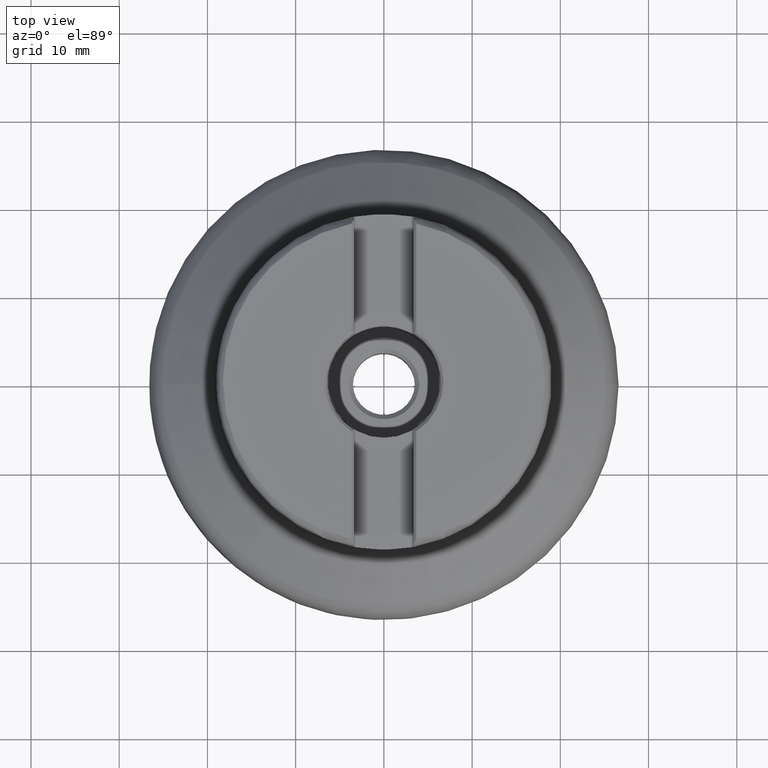
[diagram: clean part render]
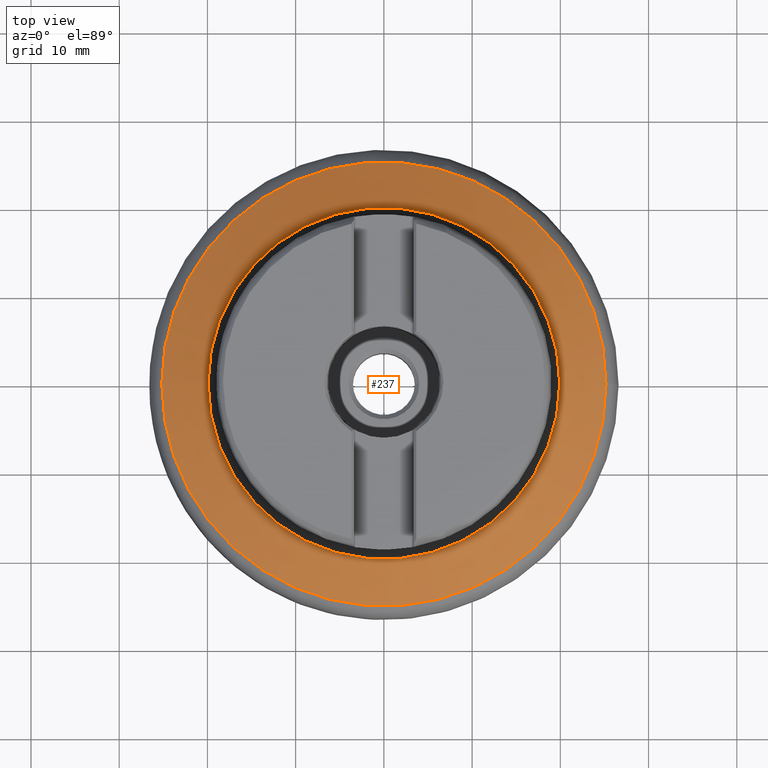
[diagram: same view with one face highlighted and labeled with its STEP entity id]
A machine part, top view. The second image highlights one B-rep face of the part: STEP entity #237.
In plain terms, the highlighted conical surface has half-angle 50 deg.
Its self-contained STEP definition (entity closure, byte-faithful):
#165=CONICAL_SURFACE('',#1207,18.5,50.);
#237=ADVANCED_FACE('',(#392,#393),#165,.T.);
#392=FACE_BOUND('',#500,.T.);
#393=FACE_BOUND('',#501,.T.);
#500=EDGE_LOOP('',(#653));
#501=EDGE_LOOP('',(#654));
#653=ORIENTED_EDGE('',*,*,#972,.T.);
#654=ORIENTED_EDGE('',*,*,#973,.T.);
#873=VERTEX_POINT('',#2014);
#874=VERTEX_POINT('',#2016);
#972=EDGE_CURVE('',#873,#873,#1069,.T.);
#973=EDGE_CURVE('',#874,#874,#1070,.T.);
#1069=CIRCLE('',#1205,19.9288495612538);
#1070=CIRCLE('',#1206,25.1711504387462);
#1205=AXIS2_PLACEMENT_3D('',#2013,#1369,#1370);
#1206=AXIS2_PLACEMENT_3D('',#2015,#1371,#1372);
#1207=AXIS2_PLACEMENT_3D('',#2017,#1373,#1374);
#1369=DIRECTION('',(-1.17145536458252E-15,0.,-1.));
#1370=DIRECTION('',(-1.,0.,1.21864177804287E-15));
#1371=DIRECTION('',(1.17145536458252E-15,0.,1.));
#1372=DIRECTION('',(1.,0.,-1.10267409839578E-15));
#1373=DIRECTION('',(-1.17145536458252E-15,0.,-1.));
#1374=DIRECTION('',(-1.,0.,1.21548534673226E-15));
#2013=CARTESIAN_POINT('',(2.53008116658162E-14,0.,21.5977598726801));
#2014=CARTESIAN_POINT('',(-19.9288495612538,0.,21.5977598726801));
#2015=CARTESIAN_POINT('',(2.01477988921555E-14,0.,17.1989471398559));
#2016=CARTESIAN_POINT('',(25.1711504387462,0.,17.1989471398559));
#2017=CARTESIAN_POINT('',(2.67053247246513E-14,0.,22.796707012536));